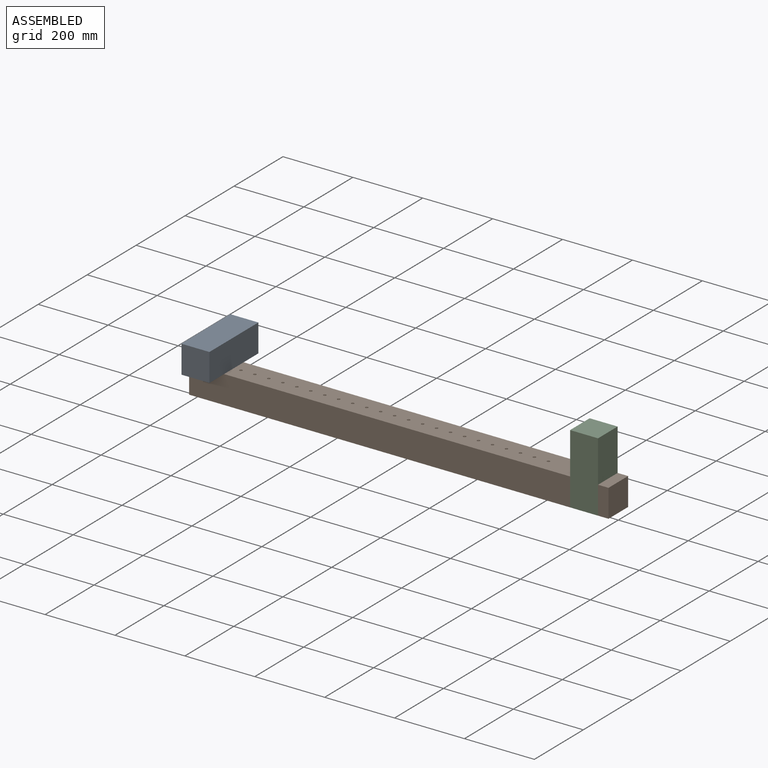
[diagram: assembled view]
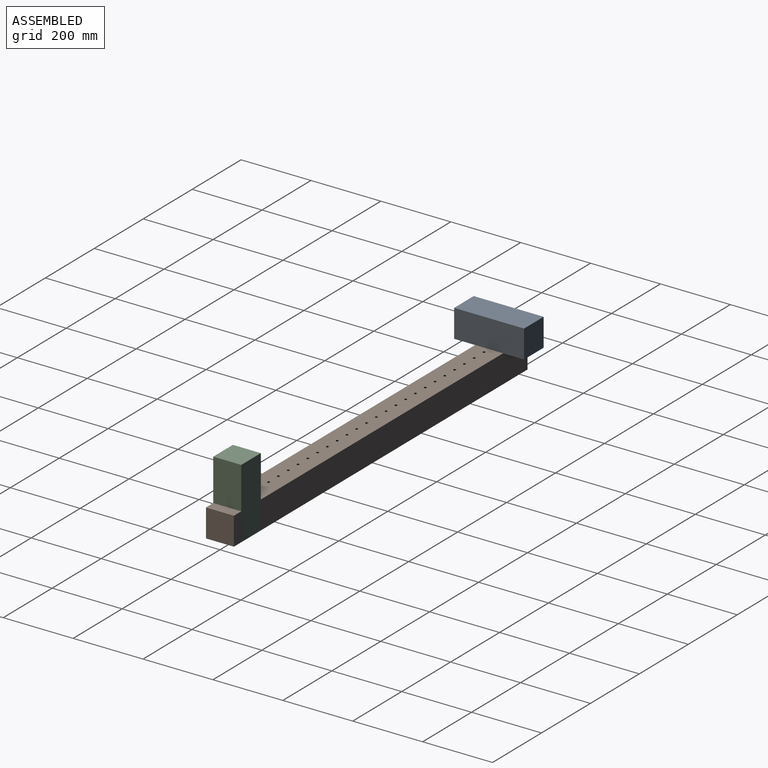
[diagram: assembled view, second angle]
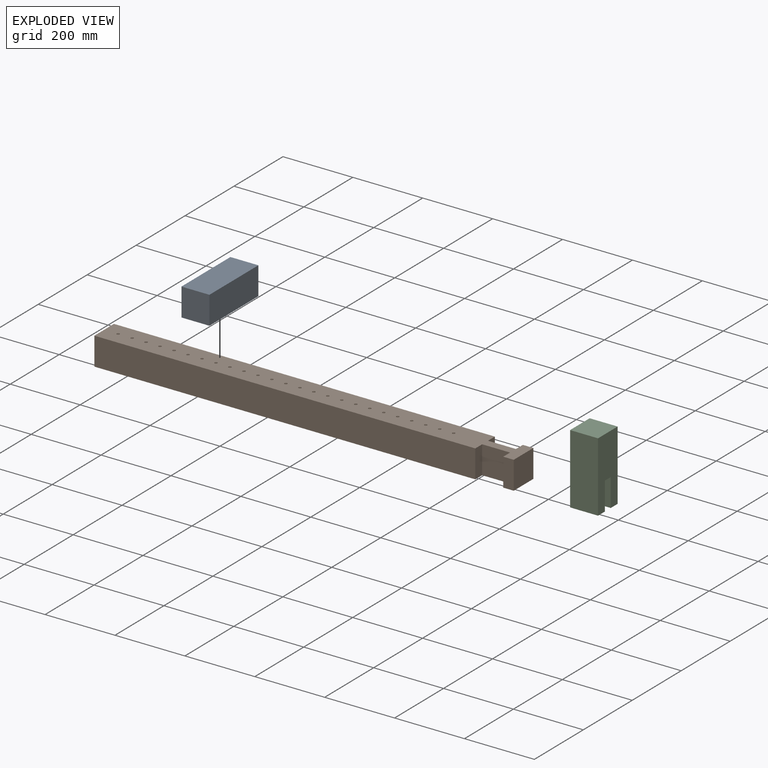
[diagram: exploded view]
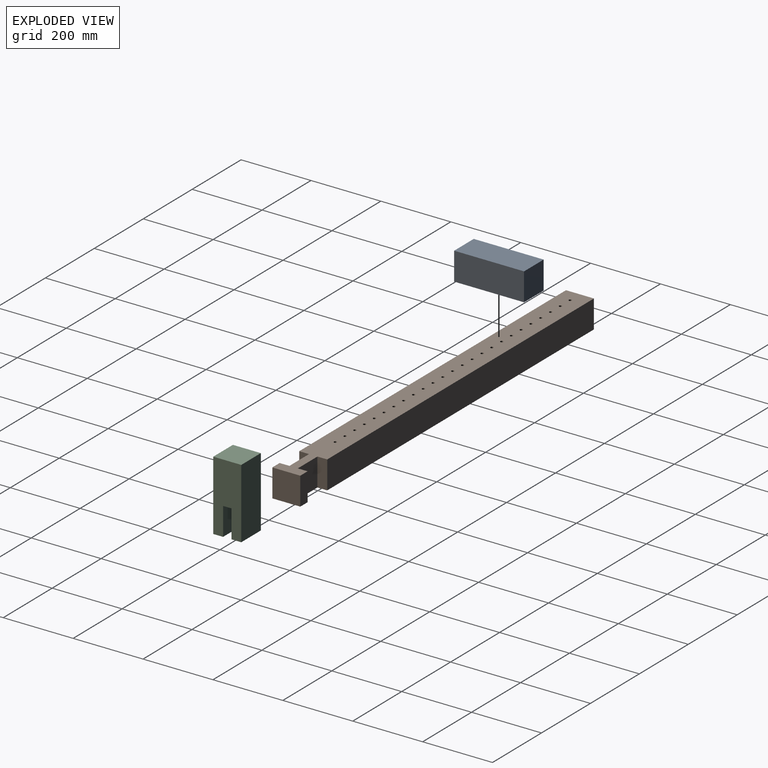
[diagram: exploded view, second angle]
ASSEMBLY  parts=3 mates=2
PART A: 10 faces, bbox 200x80x80 mm
  f0: plane 200x80mm, normal (0,0,-1), area 15899.5mm2, adj f1,f2,f3,f4,f6,f8
  f1: plane 200x80mm, normal (0,1,0), area 16000mm2, adj f0,f2,f4,f5
  f2: plane 80x80mm, normal (-1,0,0), area 6400mm2, adj f0,f1,f3,f5
  f3: plane 200x80mm, normal (0,-1,0), area 16000mm2, adj f0,f2,f4,f5
  f4: plane 80x80mm, normal (1,0,0), area 6400mm2, adj f0,f1,f3,f5
  f5: plane 200x80mm, normal (0,0,1), area 16000mm2, adj f1,f2,f3,f4
  f6: cylinder r=4mm len=30mm, axis (0,0,-1), area 754mm2, adj f0,f7
  f7: plane 8x8mm, normal (0,0,-1), area 50.3mm2, adj f6
  f8: cylinder r=4mm len=30mm, axis (0,0,-1), area 754mm2, adj f0,f9
  f9: plane 8x8mm, normal (0,0,-1), area 50.3mm2, adj f8
PART B: 64 faces, bbox 1200x80x80 mm
  f0: plane 80x30mm, normal (0,1,0), area 2400mm2, adj f2,f3,f7,f61
  f1: plane 80x30mm, normal (0,-1,0), area 2400mm2, adj f2,f3,f7,f58
  f2: plane 1200x80mm, normal (0,0,1), area 90263.4mm2, adj f0,f1,f4,f5,f6,f7,f8,f10
  f3: plane 1200x80mm, normal (0,0,-1), area 91520mm2, adj f0,f1,f4,f5,f6,f7,f58,f59
  f4: plane 1090x80mm, normal (0,1,0), area 87200mm2, adj f2,f3,f5,f62
  f5: plane 80x80mm, normal (-1,0,0), area 6400mm2, adj f2,f3,f4,f6
  f6: plane 1090x80mm, normal (0,-1,0), area 87200mm2, adj f2,f3,f5,f60
  f7: plane 80x80mm, normal (1,0,0), area 6400mm2, adj f0,f1,f2,f3
  f8: cylinder r=4mm len=25mm, axis (0,0,1), area 628.3mm2, adj f2,f9
  f9: plane 8x8mm, normal (0,0,1), area 50.3mm2, adj f8
  f10: cylinder r=4mm len=25mm, axis (0,0,1), area 628.3mm2, adj f2,f11
  f11: plane 8x8mm, normal (0,0,1), area 50.3mm2, adj f10
  f12: cylinder r=4mm len=25mm, axis (0,0,1), area 628.3mm2, adj f2,f13
  f13: plane 8x8mm, normal (0,0,1), area 50.3mm2, adj f12
  f14: cylinder r=4mm len=25mm, axis (0,0,1), area 628.3mm2, adj f2,f15
  f15: plane 8x8mm, normal (0,0,1), area 50.3mm2, adj f14
  f16: cylinder r=4mm len=25mm, axis (0,0,1), area 628.3mm2, adj f2,f17
  f17: plane 8x8mm, normal (0,0,1), area 50.3mm2, adj f16
  f18: cylinder r=4mm len=25mm, axis (0,0,1), area 628.3mm2, adj f2,f19
  f19: plane 8x8mm, normal (0,0,1), area 50.3mm2, adj f18
  f20: cylinder r=4mm len=25mm, axis (0,0,1), area 628.3mm2, adj f2,f21
  f21: plane 8x8mm, normal (0,0,1), area 50.3mm2, adj f20
  f22: cylinder r=4mm len=25mm, axis (0,0,1), area 628.3mm2, adj f2,f23
  f23: plane 8x8mm, normal (0,0,1), area 50.3mm2, adj f22
  f24: cylinder r=4mm len=25mm, axis (0,0,1), area 628.3mm2, adj f2,f25
  f25: plane 8x8mm, normal (0,0,1), area 50.3mm2, adj f24
  f26: cylinder r=4mm len=25mm, axis (0,0,1), area 628.3mm2, adj f2,f27
  f27: plane 8x8mm, normal (0,0,1), area 50.3mm2, adj f26
  f28: cylinder r=4mm len=25mm, axis (0,0,1), area 628.3mm2, adj f2,f29
  f29: plane 8x8mm, normal (0,0,1), area 50.3mm2, adj f28
  f30: cylinder r=4mm len=25mm, axis (0,0,1), area 628.3mm2, adj f2,f31
  f31: plane 8x8mm, normal (0,0,1), area 50.3mm2, adj f30
  f32: cylinder r=4mm len=25mm, axis (0,0,1), area 628.3mm2, adj f2,f33
  f33: plane 8x8mm, normal (0,0,1), area 50.3mm2, adj f32
  f34: cylinder r=4mm len=25mm, axis (0,0,1), area 628.3mm2, adj f2,f35
  f35: plane 8x8mm, normal (0,0,1), area 50.3mm2, adj f34
  f36: cylinder r=4mm len=25mm, axis (0,0,1), area 628.3mm2, adj f2,f37
  f37: plane 8x8mm, normal (0,0,1), area 50.3mm2, adj f36
  f38: cylinder r=4mm len=25mm, axis (0,0,1), area 628.3mm2, adj f2,f39
  f39: plane 8x8mm, normal (0,0,1), area 50.3mm2, adj f38
  f40: cylinder r=4mm len=25mm, axis (0,0,1), area 628.3mm2, adj f2,f41
  f41: plane 8x8mm, normal (0,0,1), area 50.3mm2, adj f40
  f42: cylinder r=4mm len=25mm, axis (0,0,1), area 628.3mm2, adj f2,f43
  f43: plane 8x8mm, normal (0,0,1), area 50.3mm2, adj f42
  f44: cylinder r=4mm len=25mm, axis (0,0,1), area 628.3mm2, adj f2,f45
  f45: plane 8x8mm, normal (0,0,1), area 50.3mm2, adj f44
  f46: cylinder r=4mm len=25mm, axis (0,0,1), area 628.3mm2, adj f2,f47
  f47: plane 8x8mm, normal (0,0,1), area 50.3mm2, adj f46
  f48: cylinder r=4mm len=25mm, axis (0,0,1), area 628.3mm2, adj f2,f49
  f49: plane 8x8mm, normal (0,0,1), area 50.3mm2, adj f48
  f50: cylinder r=4mm len=25mm, axis (0,0,1), area 628.3mm2, adj f2,f51
  f51: plane 8x8mm, normal (0,0,1), area 50.3mm2, adj f50
  f52: cylinder r=4mm len=25mm, axis (0,0,1), area 628.3mm2, adj f2,f53
  f53: plane 8x8mm, normal (0,0,1), area 50.3mm2, adj f52
  f54: cylinder r=4mm len=25mm, axis (0,0,1), area 628.3mm2, adj f2,f55
  f55: plane 8x8mm, normal (0,0,1), area 50.3mm2, adj f54
  f56: cylinder r=4mm len=25mm, axis (0,0,1), area 628.3mm2, adj f2,f57
  f57: plane 8x8mm, normal (0,0,1), area 50.3mm2, adj f56
  f58: plane 80x28mm, normal (-1,0,0), area 2240mm2, adj f1,f2,f3,f59
  f59: plane 80x80mm, normal (0,-1,0), area 6400mm2, adj f2,f3,f58,f60
  f60: plane 80x28mm, normal (1,0,0), area 2240mm2, adj f2,f3,f6,f59
  f61: plane 80x28mm, normal (-1,0,0), area 2240mm2, adj f0,f2,f3,f63
  f62: plane 80x28mm, normal (1,0,0), area 2240mm2, adj f2,f3,f4,f63
  f63: plane 80x80mm, normal (0,1,0), area 6400mm2, adj f2,f3,f61,f62
PART C: 10 faces, bbox 80x80x200 mm
  f0: plane 80x28mm, normal (0,0,-1), area 2240mm2, adj f1,f3,f4,f8
  f1: plane 200x80mm, normal (0,1,0), area 14080mm2, adj f0,f2,f4,f5,f6,f7,f8,f9
  f2: plane 200x80mm, normal (-1,0,0), area 16000mm2, adj f1,f3,f5,f6
  f3: plane 200x80mm, normal (0,-1,0), area 14080mm2, adj f0,f2,f4,f5,f6,f7,f8,f9
  f4: plane 200x80mm, normal (1,0,0), area 16000mm2, adj f0,f1,f3,f5
  f5: plane 80x80mm, normal (0,0,1), area 6400mm2, adj f1,f2,f3,f4
  f6: plane 80x28mm, normal (0,0,-1), area 2240mm2, adj f1,f2,f3,f7
  f7: plane 80x80mm, normal (1,0,0), area 6400mm2, adj f1,f3,f6,f9
  f8: plane 80x80mm, normal (-1,0,0), area 6400mm2, adj f0,f1,f3,f9
  f9: plane 80x24mm, normal (0,0,-1), area 1920mm2, adj f1,f3,f7,f8
PLACE A rot(axis=(0,0,-1),90deg) t=(-540,0,80)mm
PLACE B at identity fixed
PLACE C rot(axis=(0,0,1),90deg) t=(530,0,0)mm
MATE fastened A.f8 <-> B.f56  axis (0,0,-1) through (-560,0,80)mm
MATE fastened C.f1 <-> B.f60  axis (-1,0,0) through (490,-12,80)mm
